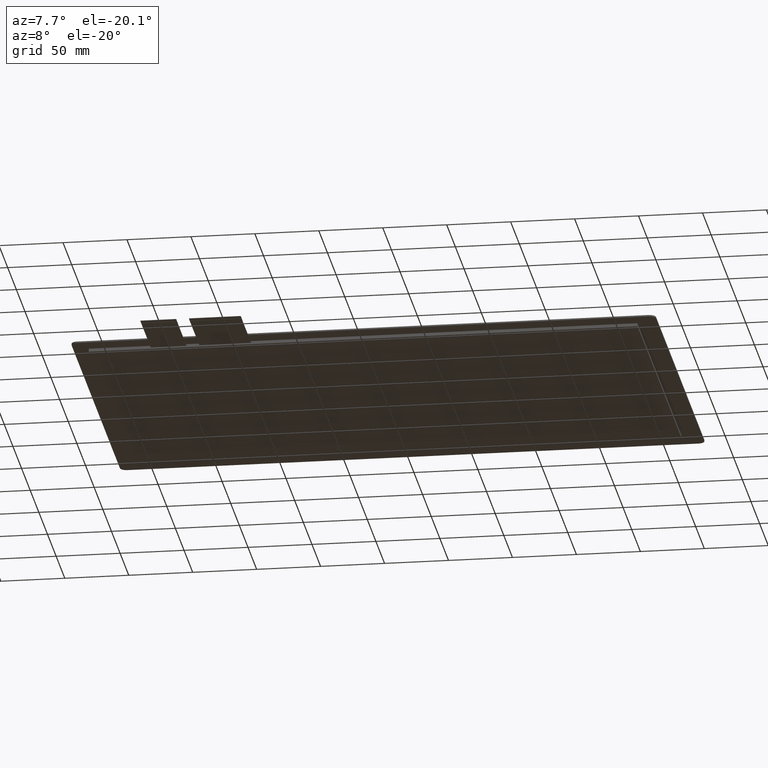
[diagram: clean part render]
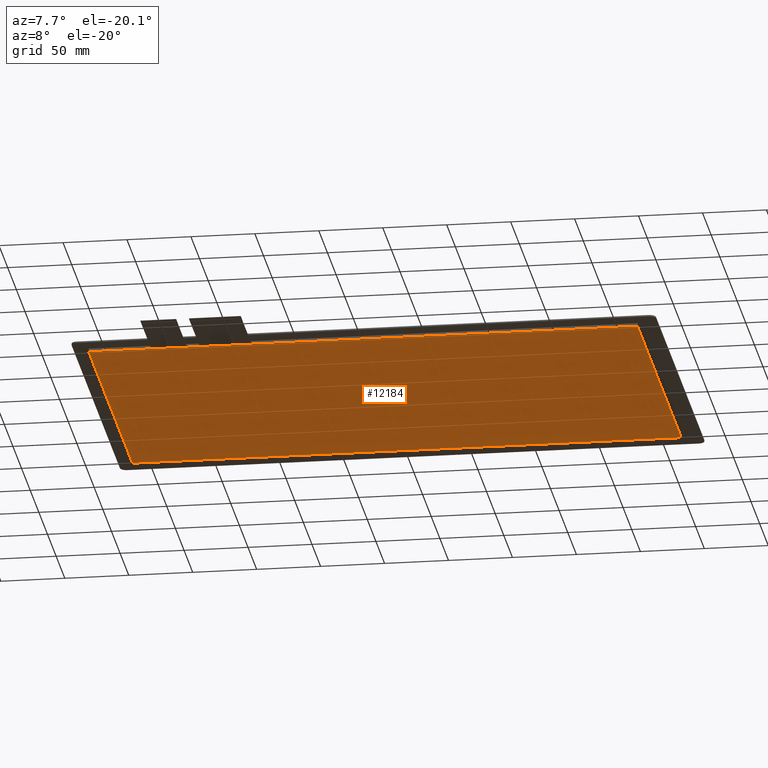
[diagram: same view with one face highlighted and labeled with its STEP entity id]
A machine part, auxiliary view. The second image highlights one B-rep face of the part: STEP entity #12184.
In plain terms, the highlighted planar face has unit normal (0, 0, -1).
Its self-contained STEP definition (entity closure, byte-faithful):
#620=PLANE('',#12806);
#1204=FACE_OUTER_BOUND('',#1792,.T.);
#1792=EDGE_LOOP('',(#11571,#11572,#11573,#11574));
#3496=LINE('',#19165,#5212);
#3498=LINE('',#19169,#5214);
#3500=LINE('',#19173,#5216);
#3502=LINE('',#19176,#5218);
#5212=VECTOR('',#15692,10.);
#5214=VECTOR('',#15696,10.);
#5216=VECTOR('',#15700,10.);
#5218=VECTOR('',#15704,10.);
#6391=VERTEX_POINT('',#19162);
#6392=VERTEX_POINT('',#19164);
#6393=VERTEX_POINT('',#19168);
#6394=VERTEX_POINT('',#19172);
#8116=EDGE_CURVE('',#6392,#6391,#3496,.T.);
#8118=EDGE_CURVE('',#6393,#6392,#3498,.T.);
#8120=EDGE_CURVE('',#6394,#6393,#3500,.T.);
#8122=EDGE_CURVE('',#6391,#6394,#3502,.T.);
#11571=ORIENTED_EDGE('',*,*,#8122,.T.);
#11572=ORIENTED_EDGE('',*,*,#8120,.T.);
#11573=ORIENTED_EDGE('',*,*,#8118,.T.);
#11574=ORIENTED_EDGE('',*,*,#8116,.T.);
#12184=ADVANCED_FACE('',(#1204),#620,.T.);
#12806=AXIS2_PLACEMENT_3D('',#19177,#15705,#15706);
#15692=DIRECTION('',(-2.80292992410296E-16,1.,0.));
#15696=DIRECTION('',(-1.,-1.24220758000017E-16,0.));
#15700=DIRECTION('',(0.,-1.,0.));
#15704=DIRECTION('',(1.,0.,0.));
#15705=DIRECTION('center_axis',(0.,0.,-1.));
#15706=DIRECTION('ref_axis',(-1.,0.,0.));
#19162=CARTESIAN_POINT('',(-216.3,123.,-2.5));
#19164=CARTESIAN_POINT('',(-216.3,-130.5,-2.5));
#19165=CARTESIAN_POINT('',(-216.3,123.,-2.5));
#19168=CARTESIAN_POINT('',(212.7,-130.5,-2.5));
#19169=CARTESIAN_POINT('',(-216.3,-130.5,-2.5));
#19172=CARTESIAN_POINT('',(212.7,123.,-2.5));
#19173=CARTESIAN_POINT('',(212.7,-130.5,-2.5));
#19176=CARTESIAN_POINT('',(212.7,123.,-2.5));
#19177=CARTESIAN_POINT('Origin',(-1.80000000000003,-3.75,-2.5));